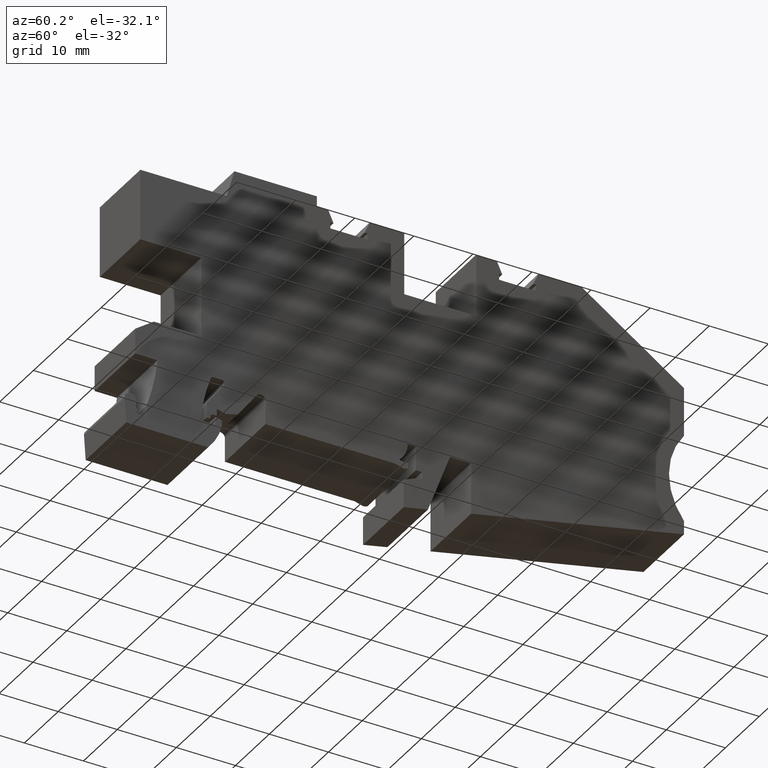
[diagram: clean part render]
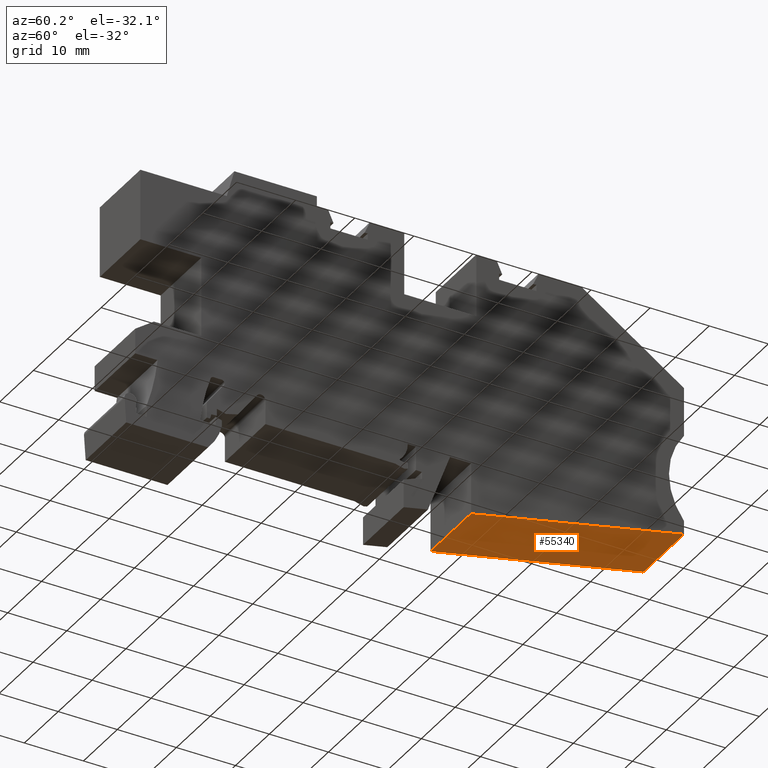
[diagram: same view with one face highlighted and labeled with its STEP entity id]
A machine part, auxiliary view. The second image highlights one B-rep face of the part: STEP entity #55340.
In plain terms, the highlighted planar face has unit normal (0, 0.2079, -0.9781).
Its self-contained STEP definition (entity closure, byte-faithful):
#840=CARTESIAN_POINT('',(56.9974635,-4.82564029332045,20.25));
#850=VERTEX_POINT('',#840);
#880=CARTESIAN_POINT('',(58.1696952865842,-4.57647474486696,20.25));
#890=DIRECTION('',(-0.978147602360037,-0.207911683166944,0.));
#900=VECTOR('',#890,1.);
#910=LINE('',#880,#900);
#920=CARTESIAN_POINT('',(93.0346105,2.83429147078842,20.25));
#930=VERTEX_POINT('',#920);
#940=EDGE_CURVE('',#930,#850,#910,.T.);
#12640=CARTESIAN_POINT('',(93.0346105,2.83429147078842,32.2500000042363)
);
#12650=VERTEX_POINT('',#12640);
#12680=CARTESIAN_POINT('',(58.1696952865842,-4.57647474486696,
32.2500000042363));
#12690=DIRECTION('',(-0.978147602360037,-0.207911683166944,0.));
#12700=VECTOR('',#12690,1.);
#12710=LINE('',#12680,#12700);
#12720=CARTESIAN_POINT('',(56.9974635,-4.82564029332045,32.2500000042363
));
#12730=VERTEX_POINT('',#12720);
#12740=EDGE_CURVE('',#12650,#12730,#12710,.T.);
#54220=CARTESIAN_POINT('',(56.9974635,-4.82564029332045,20.25));
#54230=DIRECTION('',(0.,0.,-1.));
#54240=VECTOR('',#54230,1.);
#54250=LINE('',#54220,#54240);
#54260=EDGE_CURVE('',#12730,#850,#54250,.T.);
#55180=CARTESIAN_POINT('',(92.6385663415834,2.75010968944361,20.25));
#55190=DIRECTION('',(0.207911683166944,-0.978147602360037,0.));
#55200=DIRECTION('',(-0.978147602360037,-0.207911683166944,0.));
#55210=AXIS2_PLACEMENT_3D('',#55180,#55190,#55200);
#55220=PLANE('',#55210);
#55230=ORIENTED_EDGE('',*,*,#940,.F.);
#55240=ORIENTED_EDGE('',*,*,#54260,.T.);
#55250=ORIENTED_EDGE('',*,*,#12740,.T.);
#55260=CARTESIAN_POINT('',(93.0346105,2.83429147078842,20.25));
#55270=DIRECTION('',(0.,0.,-1.));
#55280=VECTOR('',#55270,1.);
#55290=LINE('',#55260,#55280);
#55300=EDGE_CURVE('',#12650,#930,#55290,.T.);
#55310=ORIENTED_EDGE('',*,*,#55300,.F.);
#55320=EDGE_LOOP('',(#55310,#55250,#55240,#55230));
#55330=FACE_OUTER_BOUND('',#55320,.T.);
#55340=ADVANCED_FACE('',(#55330),#55220,.T.);